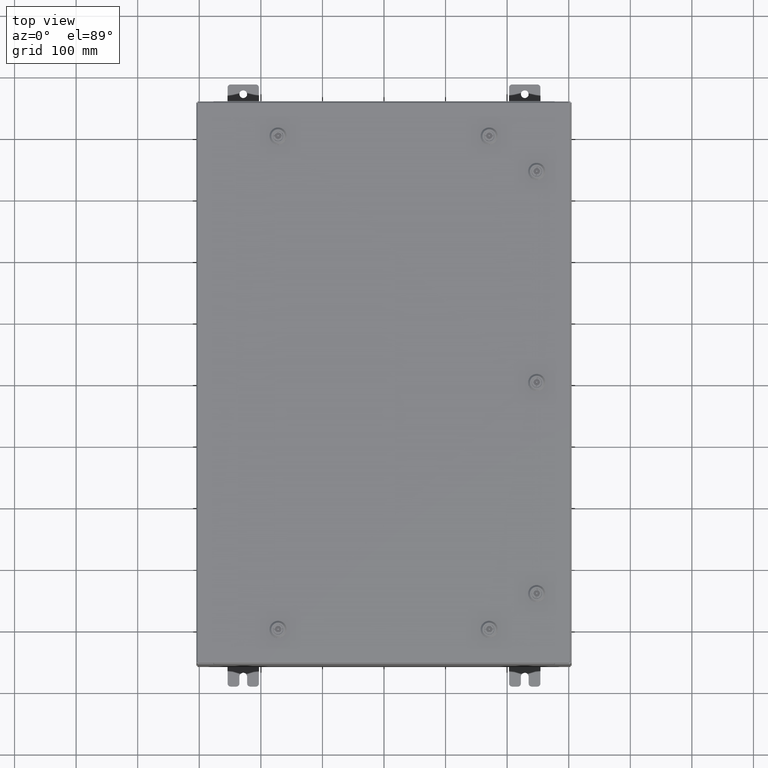
[diagram: clean part render]
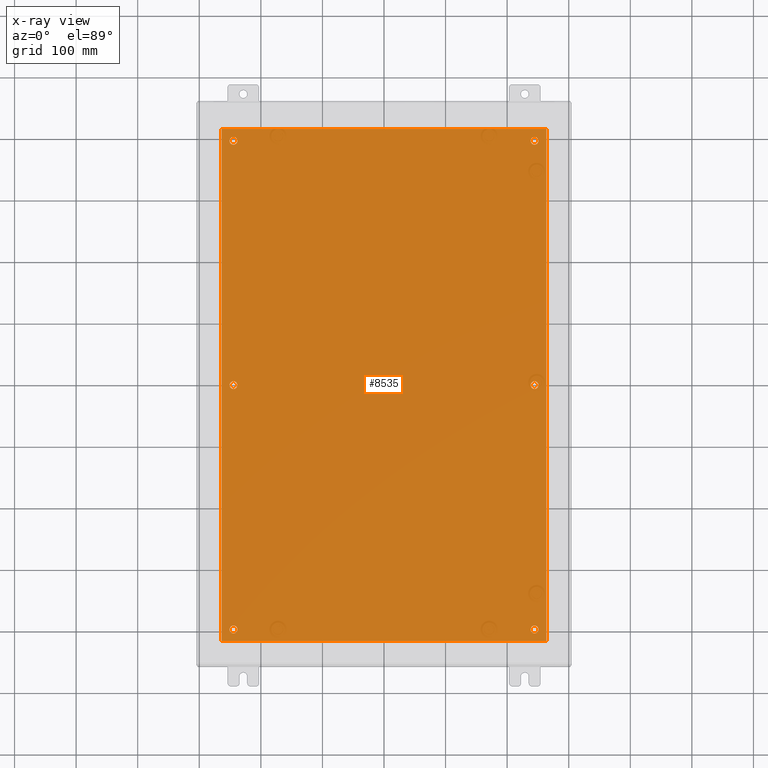
[diagram: x-ray — body ghosted, one internal face saturated and labeled with its STEP entity id]
A machine part, top view, then the same camera in x-ray: the body is ghosted and one INTERNAL B-rep face — a face not visible from any outside direction — is saturated and labeled: STEP entity #8535.
In plain terms, the highlighted planar face has unit normal (0, 0, -1).
Its self-contained STEP definition (entity closure, byte-faithful):
#208 = DIRECTION ( 'NONE',  ( 0.0000000000000000000, -1.000000000000000000, 0.0000000000000000000 ) ) ;
#562 = FACE_BOUND ( 'NONE', #8378, .T. ) ;
#718 = EDGE_CURVE ( 'NONE', #34367, #20208, #44575, .T. ) ;
#744 = ORIENTED_EDGE ( 'NONE', *, *, #40004, .F. ) ;
#1134 = CARTESIAN_POINT ( 'NONE',  ( -9.375000000000005300, 2.628543122537473900E-016, -0.1039999999999999800 ) ) ;
#1409 = ORIENTED_EDGE ( 'NONE', *, *, #36579, .T. ) ;
#1996 = EDGE_CURVE ( 'NONE', #30707, #50926, #13415, .T. ) ;
#2149 = FACE_BOUND ( 'NONE', #20686, .T. ) ;
#2860 = AXIS2_PLACEMENT_3D ( 'NONE', #51140, #21403, #56184 ) ;
#3111 = EDGE_CURVE ( 'NONE', #40174, #40980, #5434, .T. ) ;
#3270 = CIRCLE ( 'NONE', #51619, 0.2500000000000008900 ) ;
#3297 = VERTEX_POINT ( 'NONE', #4959 ) ;
#3967 = EDGE_CURVE ( 'NONE', #40980, #40174, #61474, .T. ) ;
#4959 = CARTESIAN_POINT ( 'NONE',  ( 9.875000000000007100, -15.62500000000000200, -0.1039999999999999800 ) ) ;
#5155 = DIRECTION ( 'NONE',  ( -0.0000000000000000000, -0.0000000000000000000, 1.000000000000000000 ) ) ;
#5434 = CIRCLE ( 'NONE', #19161, 0.2500000000000008900 ) ;
#5479 = VERTEX_POINT ( 'NONE', #61025 ) ;
#7029 = ORIENTED_EDGE ( 'NONE', *, *, #3111, .T. ) ;
#7130 = VERTEX_POINT ( 'NONE', #10471 ) ;
#7376 = CARTESIAN_POINT ( 'NONE',  ( 9.625000000000007100, 15.62500000000000200, -0.1039999999999999800 ) ) ;
#7568 = VECTOR ( 'NONE', #58762, 39.37007874015748100 ) ;
#7664 = EDGE_CURVE ( 'NONE', #50926, #30707, #43463, .T. ) ;
#8378 = EDGE_LOOP ( 'NONE', ( #29963, #61261 ) ) ;
#8392 = CARTESIAN_POINT ( 'NONE',  ( 9.875000000000007100, 2.620299400612403500E-015, -0.1039999999999999800 ) ) ;
#8535 = ADVANCED_FACE ( 'NONE', ( #562, #27166, #13919, #2149, #15471, #52004, #38830 ), #18519, .T. ) ;
#9046 = AXIS2_PLACEMENT_3D ( 'NONE', #10998, #45807, #16040 ) ;
#10090 = VERTEX_POINT ( 'NONE', #30945 ) ;
#10471 = CARTESIAN_POINT ( 'NONE',  ( 9.375000000000007100, -15.62500000000000200, -0.1039999999999999800 ) ) ;
#10720 = CARTESIAN_POINT ( 'NONE',  ( -9.375000000000007100, -15.62500000000000200, -0.1039999999999999800 ) ) ;
#10998 = CARTESIAN_POINT ( 'NONE',  ( -9.625000000000007100, -15.62500000000000200, -0.1039999999999999800 ) ) ;
#12423 = DIRECTION ( 'NONE',  ( -1.000000000000000000, 0.0000000000000000000, 0.0000000000000000000 ) ) ;
#13369 = DIRECTION ( 'NONE',  ( -0.0000000000000000000, -0.0000000000000000000, 1.000000000000000000 ) ) ;
#13415 = CIRCLE ( 'NONE', #36236, 0.2499999999999998100 ) ;
#13660 = ORIENTED_EDGE ( 'NONE', *, *, #718, .T. ) ;
#13845 = DIRECTION ( 'NONE',  ( -0.0000000000000000000, -0.0000000000000000000, 1.000000000000000000 ) ) ;
#13919 = FACE_BOUND ( 'NONE', #28155, .T. ) ;
#14746 = DIRECTION ( 'NONE',  ( -1.000000000000000000, 0.0000000000000000000, 0.0000000000000000000 ) ) ;
#14767 = EDGE_CURVE ( 'NONE', #41537, #22319, #3270, .T. ) ;
#15248 = ORIENTED_EDGE ( 'NONE', *, *, #37577, .T. ) ;
#15471 = FACE_BOUND ( 'NONE', #21331, .T. ) ;
#16040 = DIRECTION ( 'NONE',  ( -1.000000000000000000, 0.0000000000000000000, 0.0000000000000000000 ) ) ;
#16339 = CIRCLE ( 'NONE', #59820, 0.2499999999999998100 ) ;
#16411 = ORIENTED_EDGE ( 'NONE', *, *, #3967, .T. ) ;
#16412 = DIRECTION ( 'NONE',  ( -0.0000000000000000000, -0.0000000000000000000, 1.000000000000000000 ) ) ;
#16515 = ORIENTED_EDGE ( 'NONE', *, *, #43737, .F. ) ;
#16915 = VECTOR ( 'NONE', #58656, 39.37007874015748100 ) ;
#17857 = VERTEX_POINT ( 'NONE', #27919 ) ;
#18519 = PLANE ( 'NONE',  #21473 ) ;
#19139 = VECTOR ( 'NONE', #208, 39.37007874015748100 ) ;
#19161 = AXIS2_PLACEMENT_3D ( 'NONE', #40149, #45131, #38783 ) ;
#19794 = CARTESIAN_POINT ( 'NONE',  ( 9.625000000000007100, 2.620299400612403500E-015, -0.1039999999999999800 ) ) ;
#20208 = VERTEX_POINT ( 'NONE', #45137 ) ;
#20321 = CARTESIAN_POINT ( 'NONE',  ( 9.625000000000007100, 2.620299400612403500E-015, -0.1039999999999999800 ) ) ;
#20686 = EDGE_LOOP ( 'NONE', ( #41050, #20696 ) ) ;
#20696 = ORIENTED_EDGE ( 'NONE', *, *, #33004, .T. ) ;
#21331 = EDGE_LOOP ( 'NONE', ( #59718, #15248 ) ) ;
#21403 = DIRECTION ( 'NONE',  ( -0.0000000000000000000, -0.0000000000000000000, 1.000000000000000000 ) ) ;
#21473 = AXIS2_PLACEMENT_3D ( 'NONE', #28297, #53259, #23546 ) ;
#22063 = DIRECTION ( 'NONE',  ( -1.000000000000000000, 0.0000000000000000000, 0.0000000000000000000 ) ) ;
#22319 = VERTEX_POINT ( 'NONE', #55113 ) ;
#22544 = VERTEX_POINT ( 'NONE', #47045 ) ;
#23448 = EDGE_CURVE ( 'NONE', #36930, #17857, #45591, .T. ) ;
#23546 = DIRECTION ( 'NONE',  ( -1.000000000000000000, 0.0000000000000000000, -0.0000000000000000000 ) ) ;
#24060 = CARTESIAN_POINT ( 'NONE',  ( 9.625000000000007100, -15.62500000000000200, -0.1039999999999999800 ) ) ;
#24445 = AXIS2_PLACEMENT_3D ( 'NONE', #54763, #25017, #59784 ) ;
#24820 = DIRECTION ( 'NONE',  ( -1.000000000000000000, 0.0000000000000000000, 0.0000000000000000000 ) ) ;
#25017 = DIRECTION ( 'NONE',  ( -0.0000000000000000000, -0.0000000000000000000, 1.000000000000000000 ) ) ;
#26049 = ORIENTED_EDGE ( 'NONE', *, *, #39060, .T. ) ;
#26856 = VECTOR ( 'NONE', #49446, 39.37007874015748100 ) ;
#27116 = CARTESIAN_POINT ( 'NONE',  ( -9.875000000000007100, 15.62500000000000200, -0.1039999999999999800 ) ) ;
#27166 = FACE_BOUND ( 'NONE', #51360, .T. ) ;
#27919 = CARTESIAN_POINT ( 'NONE',  ( -10.38300000000000100, -16.38299999999999600, -0.1040000000000009100 ) ) ;
#28155 = EDGE_LOOP ( 'NONE', ( #13660, #26049 ) ) ;
#28297 = CARTESIAN_POINT ( 'NONE',  ( 0.0000000000000000000, 0.0000000000000000000, -0.1039999999999999800 ) ) ;
#29041 = DIRECTION ( 'NONE',  ( -1.000000000000000000, 0.0000000000000000000, 0.0000000000000000000 ) ) ;
#29397 = ORIENTED_EDGE ( 'NONE', *, *, #14767, .T. ) ;
#29509 = CIRCLE ( 'NONE', #63430, 0.2499999999999998100 ) ;
#29963 = ORIENTED_EDGE ( 'NONE', *, *, #1996, .T. ) ;
#30117 = CIRCLE ( 'NONE', #2860, 0.2499999999999998100 ) ;
#30707 = VERTEX_POINT ( 'NONE', #8392 ) ;
#30945 = CARTESIAN_POINT ( 'NONE',  ( 9.375000000000007100, 15.62500000000000200, -0.1039999999999999800 ) ) ;
#33004 = EDGE_CURVE ( 'NONE', #7130, #3297, #29509, .T. ) ;
#33854 = CARTESIAN_POINT ( 'NONE',  ( 10.38300000000000100, -16.38299999999999600, -0.1040000000000009100 ) ) ;
#34367 = VERTEX_POINT ( 'NONE', #10720 ) ;
#34670 = AXIS2_PLACEMENT_3D ( 'NONE', #47189, #36162, #35291 ) ;
#34822 = ORIENTED_EDGE ( 'NONE', *, *, #23448, .F. ) ;
#35051 = CARTESIAN_POINT ( 'NONE',  ( 9.625000000000007100, 15.62500000000000200, -0.1039999999999999800 ) ) ;
#35291 = DIRECTION ( 'NONE',  ( -1.000000000000000000, 0.0000000000000000000, 0.0000000000000000000 ) ) ;
#35941 = EDGE_LOOP ( 'NONE', ( #1409, #29397 ) ) ;
#36162 = DIRECTION ( 'NONE',  ( -0.0000000000000000000, -0.0000000000000000000, 1.000000000000000000 ) ) ;
#36236 = AXIS2_PLACEMENT_3D ( 'NONE', #20321, #13845, #14746 ) ;
#36579 = EDGE_CURVE ( 'NONE', #22319, #41537, #47255, .T. ) ;
#36930 = VERTEX_POINT ( 'NONE', #57148 ) ;
#37195 = EDGE_CURVE ( 'NONE', #47237, #5479, #56591, .T. ) ;
#37577 = EDGE_CURVE ( 'NONE', #10090, #22544, #45646, .T. ) ;
#38641 = AXIS2_PLACEMENT_3D ( 'NONE', #7376, #42205, #12423 ) ;
#38783 = DIRECTION ( 'NONE',  ( -1.000000000000000000, 0.0000000000000000000, 0.0000000000000000000 ) ) ;
#38830 = FACE_OUTER_BOUND ( 'NONE', #46866, .T. ) ;
#39060 = EDGE_CURVE ( 'NONE', #20208, #34367, #54905, .T. ) ;
#40004 = EDGE_CURVE ( 'NONE', #17857, #47237, #40054, .T. ) ;
#40054 = LINE ( 'NONE', #49655, #26856 ) ;
#40058 = DIRECTION ( 'NONE',  ( -1.000000000000000000, 0.0000000000000000000, 0.0000000000000000000 ) ) ;
#40149 = CARTESIAN_POINT ( 'NONE',  ( -9.625000000000005300, 2.628543122537473900E-016, -0.1039999999999999800 ) ) ;
#40174 = VERTEX_POINT ( 'NONE', #51357 ) ;
#40980 = VERTEX_POINT ( 'NONE', #1134 ) ;
#41040 = CARTESIAN_POINT ( 'NONE',  ( 9.375000000000007100, 2.650915570591087300E-015, -0.1039999999999999800 ) ) ;
#41050 = ORIENTED_EDGE ( 'NONE', *, *, #45502, .T. ) ;
#41537 = VERTEX_POINT ( 'NONE', #27116 ) ;
#42205 = DIRECTION ( 'NONE',  ( -0.0000000000000000000, -0.0000000000000000000, 1.000000000000000000 ) ) ;
#43115 = CARTESIAN_POINT ( 'NONE',  ( -9.625000000000007100, 15.62500000000000200, -0.1039999999999999800 ) ) ;
#43329 = AXIS2_PLACEMENT_3D ( 'NONE', #57490, #16412, #22063 ) ;
#43463 = CIRCLE ( 'NONE', #53032, 0.2499999999999998100 ) ;
#43737 = EDGE_CURVE ( 'NONE', #5479, #36930, #60536, .T. ) ;
#44575 = CIRCLE ( 'NONE', #34670, 0.2500000000000008900 ) ;
#45131 = DIRECTION ( 'NONE',  ( -0.0000000000000000000, -0.0000000000000000000, 1.000000000000000000 ) ) ;
#45137 = CARTESIAN_POINT ( 'NONE',  ( -9.875000000000007100, -15.62500000000000200, -0.1039999999999999800 ) ) ;
#45450 = CARTESIAN_POINT ( 'NONE',  ( 10.38300000000000100, -16.38299999999999600, -0.1040000000000009100 ) ) ;
#45502 = EDGE_CURVE ( 'NONE', #3297, #7130, #30117, .T. ) ;
#45591 = LINE ( 'NONE', #54907, #19139 ) ;
#45646 = CIRCLE ( 'NONE', #38641, 0.2499999999999998100 ) ;
#45807 = DIRECTION ( 'NONE',  ( -0.0000000000000000000, -0.0000000000000000000, 1.000000000000000000 ) ) ;
#46866 = EDGE_LOOP ( 'NONE', ( #744, #34822, #16515, #63619 ) ) ;
#47045 = CARTESIAN_POINT ( 'NONE',  ( 9.875000000000007100, 15.62500000000000200, -0.1039999999999999800 ) ) ;
#47189 = CARTESIAN_POINT ( 'NONE',  ( -9.625000000000007100, -15.62500000000000200, -0.1039999999999999800 ) ) ;
#47237 = VERTEX_POINT ( 'NONE', #45450 ) ;
#47255 = CIRCLE ( 'NONE', #24445, 0.2500000000000008900 ) ;
#48105 = DIRECTION ( 'NONE',  ( -1.000000000000000000, 0.0000000000000000000, 0.0000000000000000000 ) ) ;
#48699 = CARTESIAN_POINT ( 'NONE',  ( 10.50000000000000400, 16.38299999999999900, -0.1040000000000009100 ) ) ;
#49446 = DIRECTION ( 'NONE',  ( 1.000000000000000000, -0.0000000000000000000, -0.0000000000000000000 ) ) ;
#49655 = CARTESIAN_POINT ( 'NONE',  ( -10.50000000000000200, -16.38299999999999600, -0.1040000000000009100 ) ) ;
#50926 = VERTEX_POINT ( 'NONE', #41040 ) ;
#51140 = CARTESIAN_POINT ( 'NONE',  ( 9.625000000000007100, -15.62500000000000200, -0.1039999999999999800 ) ) ;
#51357 = CARTESIAN_POINT ( 'NONE',  ( -9.875000000000005300, 2.934704822324310800E-016, -0.1039999999999999800 ) ) ;
#51360 = EDGE_LOOP ( 'NONE', ( #16411, #7029 ) ) ;
#51619 = AXIS2_PLACEMENT_3D ( 'NONE', #43115, #13369, #48105 ) ;
#52004 = FACE_BOUND ( 'NONE', #35941, .T. ) ;
#53032 = AXIS2_PLACEMENT_3D ( 'NONE', #19794, #54563, #24820 ) ;
#53259 = DIRECTION ( 'NONE',  ( 0.0000000000000000000, 0.0000000000000000000, -1.000000000000000000 ) ) ;
#54563 = DIRECTION ( 'NONE',  ( -0.0000000000000000000, -0.0000000000000000000, 1.000000000000000000 ) ) ;
#54763 = CARTESIAN_POINT ( 'NONE',  ( -9.625000000000007100, 15.62500000000000200, -0.1039999999999999800 ) ) ;
#54905 = CIRCLE ( 'NONE', #9046, 0.2500000000000008900 ) ;
#54907 = CARTESIAN_POINT ( 'NONE',  ( -10.38300000000000100, 16.38300000000000300, -0.1039999999999987600 ) ) ;
#55113 = CARTESIAN_POINT ( 'NONE',  ( -9.375000000000007100, 15.62500000000000200, -0.1039999999999999800 ) ) ;
#56184 = DIRECTION ( 'NONE',  ( -1.000000000000000000, 0.0000000000000000000, 0.0000000000000000000 ) ) ;
#56591 = LINE ( 'NONE', #33854, #16915 ) ;
#57148 = CARTESIAN_POINT ( 'NONE',  ( -10.38300000000000100, 16.38300000000000300, -0.1039999999999987600 ) ) ;
#57490 = CARTESIAN_POINT ( 'NONE',  ( -9.625000000000005300, 2.628543122537473900E-016, -0.1039999999999999800 ) ) ;
#58656 = DIRECTION ( 'NONE',  ( 0.0000000000000000000, 1.000000000000000000, 0.0000000000000000000 ) ) ;
#58762 = DIRECTION ( 'NONE',  ( -1.000000000000000000, -0.0000000000000000000, -0.0000000000000000000 ) ) ;
#58856 = DIRECTION ( 'NONE',  ( -0.0000000000000000000, -0.0000000000000000000, 1.000000000000000000 ) ) ;
#59718 = ORIENTED_EDGE ( 'NONE', *, *, #62218, .T. ) ;
#59784 = DIRECTION ( 'NONE',  ( -1.000000000000000000, 0.0000000000000000000, 0.0000000000000000000 ) ) ;
#59820 = AXIS2_PLACEMENT_3D ( 'NONE', #35051, #5155, #40058 ) ;
#60536 = LINE ( 'NONE', #48699, #7568 ) ;
#61025 = CARTESIAN_POINT ( 'NONE',  ( 10.38300000000000100, 16.38300000000000300, -0.1040000000000009100 ) ) ;
#61261 = ORIENTED_EDGE ( 'NONE', *, *, #7664, .T. ) ;
#61474 = CIRCLE ( 'NONE', #43329, 0.2500000000000008900 ) ;
#62218 = EDGE_CURVE ( 'NONE', #22544, #10090, #16339, .T. ) ;
#63430 = AXIS2_PLACEMENT_3D ( 'NONE', #24060, #58856, #29041 ) ;
#63619 = ORIENTED_EDGE ( 'NONE', *, *, #37195, .F. ) ;